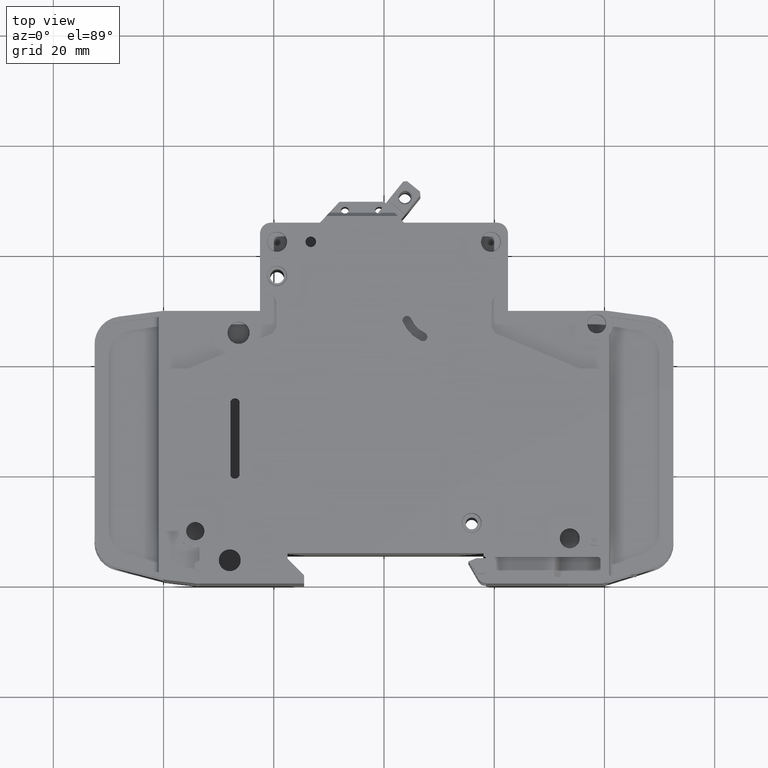
[diagram: clean part render]
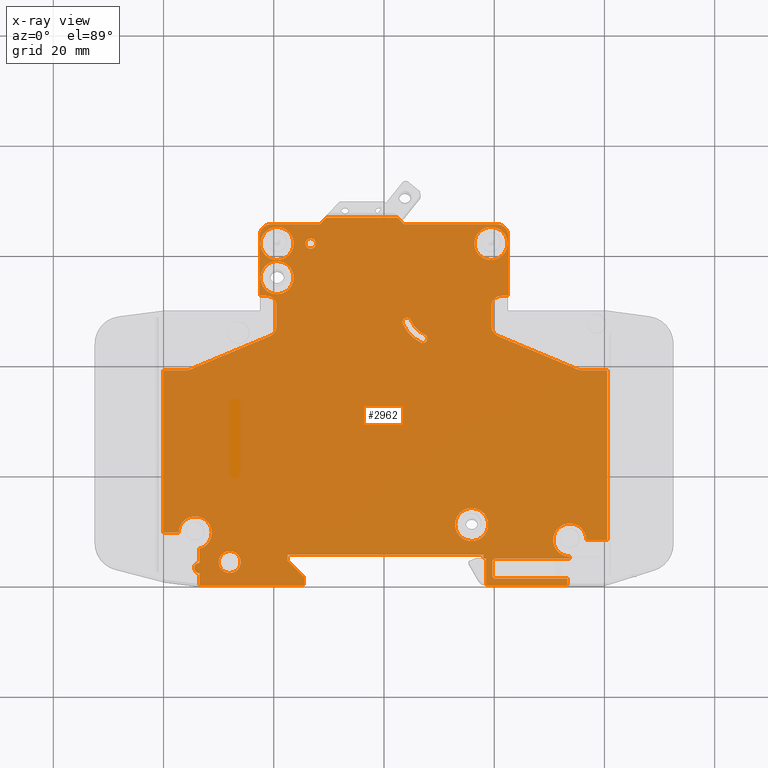
[diagram: x-ray — body ghosted, one internal face saturated and labeled with its STEP entity id]
A machine part, top view, then the same camera in x-ray: the body is ghosted and one INTERNAL B-rep face — a face not visible from any outside direction — is saturated and labeled: STEP entity #2962.
In plain terms, the highlighted planar face has unit normal (-0, 0, 1).
Its self-contained STEP definition (entity closure, byte-faithful):
#2 = DIRECTION ( 'NONE',  ( 0.0000000000000000000, -0.0000000000000000000, -1.000000000000000000 ) ) ;
#169 = CARTESIAN_POINT ( 'NONE',  ( 60.49999999999850100, 65.50000000000328300, -8.750000000000000000 ) ) ;
#223 = ORIENTED_EDGE ( 'NONE', *, *, #38591, .F. ) ;
#383 = DIRECTION ( 'NONE',  ( 1.000000000000000000, 0.0000000000000000000, 0.0000000000000000000 ) ) ;
#443 = DIRECTION ( 'NONE',  ( 1.000000000000000000, 0.0000000000000000000, 0.0000000000000000000 ) ) ;
#476 = EDGE_CURVE ( 'NONE', #23713, #4348, #3103, .T. ) ;
#477 = VERTEX_POINT ( 'NONE', #25600 ) ;
#535 = DIRECTION ( 'NONE',  ( 1.000000000000000000, 0.0000000000000000000, 0.0000000000000000000 ) ) ;
#823 = LINE ( 'NONE', #28324, #29866 ) ;
#857 = VECTOR ( 'NONE', #13083, 1000.000000000000000 ) ;
#899 = DIRECTION ( 'NONE',  ( 1.000000000000000000, -6.401373953604597600E-015, 0.0000000000000000000 ) ) ;
#910 = CARTESIAN_POINT ( 'NONE',  ( 73.70000000000001700, 4.799999999944547300, -8.750000000000000000 ) ) ;
#1070 = LINE ( 'NONE', #9812, #30121 ) ;
#1168 = VECTOR ( 'NONE', #7550, 1000.000000000000000 ) ;
#1631 = CARTESIAN_POINT ( 'NONE',  ( 6.500000000000005300, 0.0000000000000000000, -8.750000000000000000 ) ) ;
#1785 = EDGE_CURVE ( 'NONE', #22176, #15479, #22526, .T. ) ;
#1881 = CARTESIAN_POINT ( 'NONE',  ( 26.70000000006790900, 61.99999999992734700, -8.750000000000000000 ) ) ;
#1955 = EDGE_CURVE ( 'NONE', #37676, #18894, #48111, .T. ) ;
#2018 = EDGE_CURVE ( 'NONE', #10251, #41156, #13037, .T. ) ;
#2020 = VERTEX_POINT ( 'NONE', #37768 ) ;
#2094 = CARTESIAN_POINT ( 'NONE',  ( 28.14999999999816500, 65.50000000000329700, -8.750000000000000000 ) ) ;
#2095 = CIRCLE ( 'NONE', #10343, 3.000000000000002700 ) ;
#2102 = DIRECTION ( 'NONE',  ( 1.000000000000000000, 0.0000000000000000000, 0.0000000000000000000 ) ) ;
#2107 = EDGE_CURVE ( 'NONE', #3338, #30976, #9476, .T. ) ;
#2256 = EDGE_CURVE ( 'NONE', #5230, #4978, #43390, .T. ) ;
#2265 = VECTOR ( 'NONE', #30764, 1000.000000000000100 ) ;
#2421 = DIRECTION ( 'NONE',  ( 1.000000000000000000, 0.0000000000000000000, 0.0000000000000000000 ) ) ;
#2495 = CARTESIAN_POINT ( 'NONE',  ( 58.49999999999850800, 5.299999999972984100, -8.750000000000000000 ) ) ;
#2592 = CARTESIAN_POINT ( 'NONE',  ( 18.69999999999999600, 52.49999999999998600, -8.750000000000000000 ) ) ;
#2633 = CARTESIAN_POINT ( 'NONE',  ( -0.0000000000000000000, 39.00000000000000000, -8.750000000000000000 ) ) ;
#2676 = ORIENTED_EDGE ( 'NONE', *, *, #24277, .F. ) ;
#2939 = DIRECTION ( 'NONE',  ( 3.469446951472634300E-014, -1.000000000000000000, 0.0000000000000000000 ) ) ;
#2962 = ADVANCED_FACE ( 'NONE', ( #43931, #23692, #13601, #17163, #33821, #45090, #3587, #42731 ), #20939, .F. ) ;
#3070 = VECTOR ( 'NONE', #9210, 1000.000000000000000 ) ;
#3073 = DIRECTION ( 'NONE',  ( -1.000000000000000000, 1.604368532695653600E-015, 0.0000000000000000000 ) ) ;
#3103 = LINE ( 'NONE', #14139, #42235 ) ;
#3231 = AXIS2_PLACEMENT_3D ( 'NONE', #41945, #19139, #45765 ) ;
#3240 = CARTESIAN_POINT ( 'NONE',  ( 73.69999999999998900, 5.199999999999993100, -8.750000000000000000 ) ) ;
#3250 = EDGE_CURVE ( 'NONE', #33798, #23713, #30811, .T. ) ;
#3255 = LINE ( 'NONE', #25749, #34661 ) ;
#3286 = DIRECTION ( 'NONE',  ( -0.0000000000000000000, 0.0000000000000000000, 1.000000000000000000 ) ) ;
#3338 = VERTEX_POINT ( 'NONE', #13993 ) ;
#3463 = LINE ( 'NONE', #27538, #42601 ) ;
#3470 = VERTEX_POINT ( 'NONE', #49003 ) ;
#3472 = EDGE_CURVE ( 'NONE', #18027, #15479, #22432, .T. ) ;
#3477 = AXIS2_PLACEMENT_3D ( 'NONE', #18796, #45444, #22665 ) ;
#3485 = EDGE_CURVE ( 'NONE', #19792, #3338, #31386, .T. ) ;
#3587 = FACE_BOUND ( 'NONE', #25718, .T. ) ;
#3742 = DIRECTION ( 'NONE',  ( 0.0000000000000000000, -1.000000000000000000, 0.0000000000000000000 ) ) ;
#3763 = CARTESIAN_POINT ( 'NONE',  ( 62.49999999999850100, 0.0000000000000000000, -8.750000000000000000 ) ) ;
#3804 = DIRECTION ( 'NONE',  ( 1.000000000000000000, 0.0000000000000000000, 0.0000000000000000000 ) ) ;
#3995 = VERTEX_POINT ( 'NONE', #36402 ) ;
#4054 = CARTESIAN_POINT ( 'NONE',  ( 25.50000000000000400, 1.500000000000023300, -8.750000000000000000 ) ) ;
#4092 = CARTESIAN_POINT ( 'NONE',  ( 75.90184511522200200, 41.00000000000000000, -8.750000000000000000 ) ) ;
#4348 = VERTEX_POINT ( 'NONE', #910 ) ;
#4367 = VERTEX_POINT ( 'NONE', #39032 ) ;
#4372 = CARTESIAN_POINT ( 'NONE',  ( -0.0000000000000000000, 9.500000000000147400, -8.750000000000000000 ) ) ;
#4474 = ORIENTED_EDGE ( 'NONE', *, *, #24233, .T. ) ;
#4506 = EDGE_CURVE ( 'NONE', #4367, #9319, #5213, .T. ) ;
#4646 = CARTESIAN_POINT ( 'NONE',  ( 1.637829011552916400E-013, 65.50000000000342500, -8.750000000000000000 ) ) ;
#4773 = CARTESIAN_POINT ( 'NONE',  ( 4.098154884801252800, 41.00000000000000000, -8.750000000000000000 ) ) ;
#4822 = CARTESIAN_POINT ( 'NONE',  ( 80.50000000001294600, 8.200000000000043700, -8.749999999996021000 ) ) ;
#4874 = EDGE_CURVE ( 'NONE', #16129, #32636, #25302, .T. ) ;
#4952 = ORIENTED_EDGE ( 'NONE', *, *, #10032, .F. ) ;
#4967 = ORIENTED_EDGE ( 'NONE', *, *, #11323, .T. ) ;
#4978 = VERTEX_POINT ( 'NONE', #12909 ) ;
#5010 = ORIENTED_EDGE ( 'NONE', *, *, #20524, .T. ) ;
#5036 = VECTOR ( 'NONE', #43300, 999.9999999999998900 ) ;
#5049 = VECTOR ( 'NONE', #3742, 1000.000000000000000 ) ;
#5158 = VERTEX_POINT ( 'NONE', #20388 ) ;
#5213 = CIRCLE ( 'NONE', #13341, 0.9499999999563018000 ) ;
#5230 = VERTEX_POINT ( 'NONE', #32213 ) ;
#5259 = ORIENTED_EDGE ( 'NONE', *, *, #42773, .F. ) ;
#5705 = DIRECTION ( 'NONE',  ( 1.000000000000000000, 0.0000000000000000000, 0.0000000000000000000 ) ) ;
#5730 = EDGE_CURVE ( 'NONE', #28016, #6562, #46611, .T. ) ;
#6040 = DIRECTION ( 'NONE',  ( -0.0000000000000000000, 1.000000000000000000, -0.0000000000000000000 ) ) ;
#6127 = DIRECTION ( 'NONE',  ( 0.0000000000000000000, -0.0000000000000000000, -1.000000000000000000 ) ) ;
#6295 = DIRECTION ( 'NONE',  ( 1.000000000000000000, 0.0000000000000000000, 0.0000000000000000000 ) ) ;
#6366 = VERTEX_POINT ( 'NONE', #31155 ) ;
#6368 = VECTOR ( 'NONE', #28137, 1000.000000000000000 ) ;
#6373 = CIRCLE ( 'NONE', #24880, 4.999999999999997300 ) ;
#6512 = EDGE_CURVE ( 'NONE', #6366, #46537, #33465, .T. ) ;
#6562 = VERTEX_POINT ( 'NONE', #35646 ) ;
#6571 = EDGE_CURVE ( 'NONE', #22176, #18894, #20942, .T. ) ;
#6658 = LINE ( 'NONE', #44755, #35696 ) ;
#6683 = VECTOR ( 'NONE', #38916, 1000.000000000000000 ) ;
#6943 = DIRECTION ( 'NONE',  ( -0.6774757547513893300, 0.7355451051594560400, 0.0000000000000000000 ) ) ;
#6971 = CIRCLE ( 'NONE', #3231, 2.000000000000000000 ) ;
#7014 = ORIENTED_EDGE ( 'NONE', *, *, #3250, .T. ) ;
#7032 = VERTEX_POINT ( 'NONE', #23987 ) ;
#7156 = EDGE_CURVE ( 'NONE', #24041, #32636, #18714, .T. ) ;
#7225 = CARTESIAN_POINT ( 'NONE',  ( 5.750000000000020400, 9.500000000000001800, -8.750000000000000000 ) ) ;
#7266 = CARTESIAN_POINT ( 'NONE',  ( 20.50000000000082100, 47.03077264198781600, -8.750000000000000000 ) ) ;
#7302 = EDGE_CURVE ( 'NONE', #24528, #41156, #6373, .T. ) ;
#7325 = VERTEX_POINT ( 'NONE', #14657 ) ;
#7453 = VECTOR ( 'NONE', #19244, 1000.000000000000000 ) ;
#7550 = DIRECTION ( 'NONE',  ( 0.0000000000000000000, 1.000000000000000000, -0.0000000000000000000 ) ) ;
#7607 = CARTESIAN_POINT ( 'NONE',  ( 59.39999999986778800, 61.99999999992734700, -8.750000000000000000 ) ) ;
#7717 = CARTESIAN_POINT ( 'NONE',  ( 47.84881408190494800, 44.74341483518859500, -8.750000000000000000 ) ) ;
#7756 = CARTESIAN_POINT ( 'NONE',  ( 18.50000000000082800, 47.03077264198787300, -8.750000000000000000 ) ) ;
#7788 = EDGE_CURVE ( 'NONE', #4348, #28016, #31798, .T. ) ;
#7849 = CARTESIAN_POINT ( 'NONE',  ( 59.70000000000000300, 0.0000000000000000000, -8.750000000000000000 ) ) ;
#7889 = DIRECTION ( 'NONE',  ( 1.000000000000000000, -6.938893903907270200E-015, 0.0000000000000000000 ) ) ;
#7971 = DIRECTION ( 'NONE',  ( -0.0000000000000000000, 0.0000000000000000000, 1.000000000000000000 ) ) ;
#7978 = CARTESIAN_POINT ( 'NONE',  ( 73.29999999999999700, 3.469446951953614200E-014, -8.750000000000000000 ) ) ;
#8021 = VERTEX_POINT ( 'NONE', #26462 ) ;
#8061 = CARTESIAN_POINT ( 'NONE',  ( 25.15867925154756400, 60.08042806341725800, -8.750000000000000000 ) ) ;
#8071 = EDGE_CURVE ( 'NONE', #18027, #39417, #48982, .T. ) ;
#8143 = DIRECTION ( 'NONE',  ( -0.0000000000000000000, 0.0000000000000000000, 1.000000000000000000 ) ) ;
#8219 = ORIENTED_EDGE ( 'NONE', *, *, #26028, .T. ) ;
#8343 = VERTEX_POINT ( 'NONE', #36047 ) ;
#8383 = CARTESIAN_POINT ( 'NONE',  ( 22.50000000000024200, 5.500000000000264700, -8.750000000000000000 ) ) ;
#8524 = AXIS2_PLACEMENT_3D ( 'NONE', #22633, #2, #26483 ) ;
#8568 = DIRECTION ( 'NONE',  ( 1.000000000000000000, 3.469446951953651700E-015, 0.0000000000000000000 ) ) ;
#8608 = EDGE_CURVE ( 'NONE', #41450, #14872, #15065, .T. ) ;
#8636 = ORIENTED_EDGE ( 'NONE', *, *, #24525, .T. ) ;
#8702 = CARTESIAN_POINT ( 'NONE',  ( 6.500000000000005300, 4.050000000000018500, -8.750000000000000000 ) ) ;
#8733 = VECTOR ( 'NONE', #29116, 1000.000000000000000 ) ;
#8851 = AXIS2_PLACEMENT_3D ( 'NONE', #19555, #46184, #23407 ) ;
#8934 = CIRCLE ( 'NONE', #3477, 0.1999999999999875200 ) ;
#8958 = CIRCLE ( 'NONE', #40060, 2.999999999999999100 ) ;
#8961 = CARTESIAN_POINT ( 'NONE',  ( 20.60000000793647200, 61.99999999992735400, -8.750000000000000000 ) ) ;
#9020 = EDGE_CURVE ( 'NONE', #48818, #38464, #38283, .T. ) ;
#9210 = DIRECTION ( 'NONE',  ( 0.0000000000000000000, -1.000000000000000000, 0.0000000000000000000 ) ) ;
#9319 = VERTEX_POINT ( 'NONE', #15406 ) ;
#9385 = VECTOR ( 'NONE', #37943, 1000.000000000000000 ) ;
#9404 = ORIENTED_EDGE ( 'NONE', *, *, #5730, .T. ) ;
#9476 = CIRCLE ( 'NONE', #33932, 1.999999999999994900 ) ;
#9611 = ORIENTED_EDGE ( 'NONE', *, *, #31237, .F. ) ;
#9795 = AXIS2_PLACEMENT_3D ( 'NONE', #43731, #47552, #24774 ) ;
#9807 = CARTESIAN_POINT ( 'NONE',  ( 47.04881408190487900, 44.74341483518859500, -8.750000000000000000 ) ) ;
#9812 = CARTESIAN_POINT ( 'NONE',  ( 8.405070328336147700E-016, -7.077671781985372900E-013, -8.749999999996021000 ) ) ;
#9886 = ORIENTED_EDGE ( 'NONE', *, *, #43252, .T. ) ;
#9893 = EDGE_CURVE ( 'NONE', #30976, #23307, #38192, .T. ) ;
#9907 = CARTESIAN_POINT ( 'NONE',  ( 0.0000000000000000000, 4.799999999944547300, -8.750000000000000000 ) ) ;
#10032 = EDGE_CURVE ( 'NONE', #4978, #22736, #823, .T. ) ;
#10108 = CIRCLE ( 'NONE', #25473, 3.000000000000002700 ) ;
#10131 = CARTESIAN_POINT ( 'NONE',  ( 75.12934078732412500, 39.15521354531781400, -8.750000000000000000 ) ) ;
#10251 = VERTEX_POINT ( 'NONE', #38607 ) ;
#10306 = DIRECTION ( 'NONE',  ( -0.0000000000000000000, 0.0000000000000000000, 1.000000000000000000 ) ) ;
#10343 = AXIS2_PLACEMENT_3D ( 'NONE', #33042, #10306, #36847 ) ;
#10594 = DIRECTION ( 'NONE',  ( 0.0000000000000000000, -1.000000000000000000, 0.0000000000000000000 ) ) ;
#10665 = ORIENTED_EDGE ( 'NONE', *, *, #2256, .F. ) ;
#10993 = DIRECTION ( 'NONE',  ( 1.000000000000000000, 0.0000000000000000000, 0.0000000000000000000 ) ) ;
#11022 = ORIENTED_EDGE ( 'NONE', *, *, #40460, .T. ) ;
#11128 = CARTESIAN_POINT ( 'NONE',  ( 52.89999999999999900, 11.00000000000000400, -8.750000000000000000 ) ) ;
#11150 = AXIS2_PLACEMENT_3D ( 'NONE', #16503, #43113, #20324 ) ;
#11189 = EDGE_CURVE ( 'NONE', #35503, #41852, #16057, .T. ) ;
#11323 = EDGE_CURVE ( 'NONE', #46537, #6366, #8958, .T. ) ;
#11328 = CARTESIAN_POINT ( 'NONE',  ( 60.20000000000000300, 4.799999999944546400, -8.750000000000000000 ) ) ;
#11337 = ORIENTED_EDGE ( 'NONE', *, *, #476, .T. ) ;
#11360 = ORIENTED_EDGE ( 'NONE', *, *, #12999, .F. ) ;
#11382 = CARTESIAN_POINT ( 'NONE',  ( 3.035766082959468500E-013, 52.50000000000034800, -8.750000000000000000 ) ) ;
#11403 = DIRECTION ( 'NONE',  ( 1.000000000000000000, 0.0000000000000000000, 0.0000000000000000000 ) ) ;
#11548 = DIRECTION ( 'NONE',  ( 1.000000000000000000, 0.0000000000000000000, 0.0000000000000000000 ) ) ;
#11594 = VECTOR ( 'NONE', #40273, 1000.000000000000000 ) ;
#11635 = VERTEX_POINT ( 'NONE', #24523 ) ;
#11927 = EDGE_CURVE ( 'NONE', #16129, #8021, #21902, .T. ) ;
#12026 = DIRECTION ( 'NONE',  ( -0.0000000000000000000, 0.0000000000000000000, 1.000000000000000000 ) ) ;
#12072 = CARTESIAN_POINT ( 'NONE',  ( -0.0000000000000000000, 39.00000000000000000, -8.750000000000000000 ) ) ;
#12073 = VERTEX_POINT ( 'NONE', #19606 ) ;
#12261 = CARTESIAN_POINT ( 'NONE',  ( 43.45146909758702900, 65.66126212262710700, -8.750000000000000000 ) ) ;
#12454 = VECTOR ( 'NONE', #39687, 1000.000000000000100 ) ;
#12596 = DIRECTION ( 'NONE',  ( 0.0000000000000000000, -0.0000000000000000000, -1.000000000000000000 ) ) ;
#12728 = CARTESIAN_POINT ( 'NONE',  ( 60.20000000000000300, 1.699999999984503000, -8.750000000000000000 ) ) ;
#12750 = DIRECTION ( 'NONE',  ( 1.000000000000000000, 0.0000000000000000000, 0.0000000000000000000 ) ) ;
#12770 = EDGE_CURVE ( 'NONE', #38658, #477, #20622, .T. ) ;
#12909 = CARTESIAN_POINT ( 'NONE',  ( 6.500000000000005300, 2.350990073452610000E-013, -8.750000000000000000 ) ) ;
#12999 = EDGE_CURVE ( 'NONE', #23307, #30136, #22378, .T. ) ;
#13002 = DIRECTION ( 'NONE',  ( 0.0000000000000000000, -1.000000000000000000, 0.0000000000000000000 ) ) ;
#13037 = CIRCLE ( 'NONE', #8524, 0.8000000000000715400 ) ;
#13083 = DIRECTION ( 'NONE',  ( 1.000000000000000000, -2.618450529772908900E-014, 0.0000000000000000000 ) ) ;
#13164 = ORIENTED_EDGE ( 'NONE', *, *, #37849, .F. ) ;
#13341 = AXIS2_PLACEMENT_3D ( 'NONE', #1881, #28410, #5705 ) ;
#13389 = CARTESIAN_POINT ( 'NONE',  ( 5.750000000000020400, 9.500000000000001800, -8.750000000000000000 ) ) ;
#13391 = VERTEX_POINT ( 'NONE', #46370 ) ;
#13565 = ORIENTED_EDGE ( 'NONE', *, *, #6512, .T. ) ;
#13587 = DIRECTION ( 'NONE',  ( 1.000000000000000000, 0.0000000000000000000, 0.0000000000000000000 ) ) ;
#13601 = FACE_BOUND ( 'NONE', #19662, .T. ) ;
#13616 = ORIENTED_EDGE ( 'NONE', *, *, #4874, .T. ) ;
#13666 = DIRECTION ( 'NONE',  ( 0.0000000000000000000, -0.0000000000000000000, -1.000000000000000000 ) ) ;
#13962 = EDGE_CURVE ( 'NONE', #14872, #41852, #18288, .T. ) ;
#13993 = CARTESIAN_POINT ( 'NONE',  ( 62.49999999999850100, 63.50000000000330400, -8.750000000000000000 ) ) ;
#14058 = AXIS2_PLACEMENT_3D ( 'NONE', #18692, #45334, #22538 ) ;
#14139 = CARTESIAN_POINT ( 'NONE',  ( 73.70000000000018800, 2.556982403235337700E-012, -8.750000000000000000 ) ) ;
#14326 = ORIENTED_EDGE ( 'NONE', *, *, #26761, .F. ) ;
#14402 = CIRCLE ( 'NONE', #47468, 1.999999999999998200 ) ;
#14428 = CARTESIAN_POINT ( 'NONE',  ( 6.500000000000005300, 0.0000000000000000000, -8.750000000000000000 ) ) ;
#14526 = CARTESIAN_POINT ( 'NONE',  ( 19.50000000000000000, 65.50000000000331100, -8.750000000000000000 ) ) ;
#14580 = DIRECTION ( 'NONE',  ( 0.0000000000000000000, -1.000000000000000000, 0.0000000000000000000 ) ) ;
#14656 = EDGE_CURVE ( 'NONE', #22736, #22103, #48021, .T. ) ;
#14657 = CARTESIAN_POINT ( 'NONE',  ( 58.89999999999999900, 11.00000000000000400, -8.750000000000000000 ) ) ;
#14856 = VERTEX_POINT ( 'NONE', #23018 ) ;
#14872 = VERTEX_POINT ( 'NONE', #7978 ) ;
#15045 = ORIENTED_EDGE ( 'NONE', *, *, #34268, .F. ) ;
#15046 = CARTESIAN_POINT ( 'NONE',  ( 59.50000000002256000, 1.125207426520457600E-013, -8.750000000000000000 ) ) ;
#15056 = LINE ( 'NONE', #20528, #5036 ) ;
#15065 = LINE ( 'NONE', #34055, #5049 ) ;
#15324 = CIRCLE ( 'NONE', #29326, 1.999999999999978500 ) ;
#15399 = DIRECTION ( 'NONE',  ( -1.000000000000000000, -1.324216393875425600E-016, 0.0000000000000000000 ) ) ;
#15406 = CARTESIAN_POINT ( 'NONE',  ( 25.75000000011160900, 61.99999999992734700, -8.750000000000000000 ) ) ;
#15479 = VERTEX_POINT ( 'NONE', #32354 ) ;
#15527 = LINE ( 'NONE', #19000, #44649 ) ;
#15592 = ORIENTED_EDGE ( 'NONE', *, *, #17597, .F. ) ;
#15748 = CARTESIAN_POINT ( 'NONE',  ( 29.50526315788999600, 66.70000000000675300, -8.750000000000000000 ) ) ;
#15780 = CIRCLE ( 'NONE', #25979, 2.999999999999999100 ) ;
#15963 = VECTOR ( 'NONE', #20048, 1000.000000000000000 ) ;
#16032 = EDGE_CURVE ( 'NONE', #20267, #35503, #25962, .T. ) ;
#16057 = LINE ( 'NONE', #29881, #44020 ) ;
#16129 = VERTEX_POINT ( 'NONE', #7266 ) ;
#16195 = DIRECTION ( 'NONE',  ( -0.7071067811865965300, 0.7071067811864985000, 0.0000000000000000000 ) ) ;
#16503 = CARTESIAN_POINT ( 'NONE',  ( 60.20000000000000300, 4.299999999944547300, -8.750000000000000000 ) ) ;
#16506 = EDGE_CURVE ( 'NONE', #9319, #4367, #23509, .T. ) ;
#16508 = DIRECTION ( 'NONE',  ( 1.000000000000000000, 0.0000000000000000000, 0.0000000000000000000 ) ) ;
#16684 = ORIENTED_EDGE ( 'NONE', *, *, #16032, .F. ) ;
#16687 = ORIENTED_EDGE ( 'NONE', *, *, #2018, .F. ) ;
#16704 = ORIENTED_EDGE ( 'NONE', *, *, #23227, .F. ) ;
#16793 = CARTESIAN_POINT ( 'NONE',  ( 17.50000000000000000, 0.0000000000000000000, -8.750000000000000000 ) ) ;
#17155 = VECTOR ( 'NONE', #28330, 1000.000000000000000 ) ;
#17163 = FACE_BOUND ( 'NONE', #23904, .T. ) ;
#17178 = DIRECTION ( 'NONE',  ( 1.000000000000000000, 0.0000000000000000000, 0.0000000000000000000 ) ) ;
#17315 = EDGE_LOOP ( 'NONE', ( #5010, #21410 ) ) ;
#17597 = EDGE_CURVE ( 'NONE', #47325, #477, #43038, .T. ) ;
#17672 = VERTEX_POINT ( 'NONE', #38371 ) ;
#17710 = ORIENTED_EDGE ( 'NONE', *, *, #6571, .T. ) ;
#17748 = ORIENTED_EDGE ( 'NONE', *, *, #1955, .F. ) ;
#17813 = CIRCLE ( 'NONE', #31014, 2.999999999999995600 ) ;
#18027 = VERTEX_POINT ( 'NONE', #33351 ) ;
#18116 = DIRECTION ( 'NONE',  ( -0.7071067811864946200, 0.7071067811866005300, 0.0000000000000000000 ) ) ;
#18164 = ORIENTED_EDGE ( 'NONE', *, *, #21993, .F. ) ;
#18235 = CARTESIAN_POINT ( 'NONE',  ( 49.49999999999929700, 50.00000000000200400, -8.750000000000000000 ) ) ;
#18288 = LINE ( 'NONE', #20789, #17155 ) ;
#18327 = VERTEX_POINT ( 'NONE', #31322 ) ;
#18641 = ORIENTED_EDGE ( 'NONE', *, *, #26079, .F. ) ;
#18692 = CARTESIAN_POINT ( 'NONE',  ( 20.60000000793647200, 55.79999999992195800, -8.750000000000000000 ) ) ;
#18714 = CIRCLE ( 'NONE', #41118, 1.800000000000398600 ) ;
#18796 = CARTESIAN_POINT ( 'NONE',  ( 6.699999999999983300, 6.866086561786839400, -8.750000000000000000 ) ) ;
#18894 = VERTEX_POINT ( 'NONE', #32279 ) ;
#19000 = CARTESIAN_POINT ( 'NONE',  ( -1.589059672629979200E-016, 1.199999999984495500, -8.750000000000000000 ) ) ;
#19047 = CARTESIAN_POINT ( 'NONE',  ( 61.50000000002243900, 47.03077264198788000, -8.750000000000000000 ) ) ;
#19056 = VERTEX_POINT ( 'NONE', #10131 ) ;
#19061 = ORIENTED_EDGE ( 'NONE', *, *, #28077, .T. ) ;
#19139 = DIRECTION ( 'NONE',  ( -0.0000000000000000000, 0.0000000000000000000, 1.000000000000000000 ) ) ;
#19244 = DIRECTION ( 'NONE',  ( 1.591098326534340900E-011, -1.000000000000000000, 0.0000000000000000000 ) ) ;
#19253 = EDGE_CURVE ( 'NONE', #41450, #40956, #15527, .T. ) ;
#19288 = CARTESIAN_POINT ( 'NONE',  ( 20.50000000000079600, 50.69999999999918600, -8.750000000000000000 ) ) ;
#19555 = CARTESIAN_POINT ( 'NONE',  ( 73.70000000000000300, 8.199999999999999300, -8.750000000000000000 ) ) ;
#19606 = CARTESIAN_POINT ( 'NONE',  ( 43.79999999999825600, 65.50037037828451500, -8.750000000000000000 ) ) ;
#19647 = EDGE_CURVE ( 'NONE', #38464, #48818, #17813, .T. ) ;
#19655 = ORIENTED_EDGE ( 'NONE', *, *, #39062, .F. ) ;
#19662 = EDGE_LOOP ( 'NONE', ( #46900, #46829 ) ) ;
#19749 = CARTESIAN_POINT ( 'NONE',  ( 43.79999999969146500, -2.051483660483898700E-010, -8.750000000000000000 ) ) ;
#19792 = VERTEX_POINT ( 'NONE', #42590 ) ;
#20048 = DIRECTION ( 'NONE',  ( -1.000000000000000000, -2.967290156265997900E-014, 0.0000000000000000000 ) ) ;
#20140 = CARTESIAN_POINT ( 'NONE',  ( 22.50000000000022000, -7.806255641895477900E-014, -8.750000000000000000 ) ) ;
#20242 = CARTESIAN_POINT ( 'NONE',  ( 56.39999999986779500, 61.99999999992734700, -8.750000000000000000 ) ) ;
#20267 = VERTEX_POINT ( 'NONE', #27108 ) ;
#20292 = CARTESIAN_POINT ( 'NONE',  ( -10.82500000000569100, 10.82500000000719200, -8.750000000000000000 ) ) ;
#20324 = DIRECTION ( 'NONE',  ( 1.000000000000000000, 0.0000000000000000000, 0.0000000000000000000 ) ) ;
#20388 = CARTESIAN_POINT ( 'NONE',  ( 61.30000000002327500, 52.49999999999999300, -8.750000000000000000 ) ) ;
#20410 = VECTOR ( 'NONE', #899, 1000.000000000000000 ) ;
#20481 = CIRCLE ( 'NONE', #22106, 2.000000000000000000 ) ;
#20524 = EDGE_CURVE ( 'NONE', #36945, #2020, #20481, .T. ) ;
#20528 = CARTESIAN_POINT ( 'NONE',  ( -13.22342051912373200, 31.57831765761954300, -8.750000000000000000 ) ) ;
#20622 = LINE ( 'NONE', #15046, #9385 ) ;
#20744 = CIRCLE ( 'NONE', #43404, 2.999999999999999100 ) ;
#20789 = CARTESIAN_POINT ( 'NONE',  ( 9.066674948072921700E-025, 8.151842603365492200E-012, -8.750000000000000000 ) ) ;
#20827 = VERTEX_POINT ( 'NONE', #35161 ) ;
#20939 = PLANE ( 'NONE',  #9795 ) ;
#20942 = LINE ( 'NONE', #35824, #857 ) ;
#20955 = DIRECTION ( 'NONE',  ( 1.000000000000000000, 0.0000000000000000000, 0.0000000000000000000 ) ) ;
#21069 = VECTOR ( 'NONE', #30554, 1000.000000000000000 ) ;
#21085 = VERTEX_POINT ( 'NONE', #36794 ) ;
#21184 = AXIS2_PLACEMENT_3D ( 'NONE', #9807, #36358, #13587 ) ;
#21410 = ORIENTED_EDGE ( 'NONE', *, *, #45119, .T. ) ;
#21707 = DIRECTION ( 'NONE',  ( 0.0000000000000000000, 1.000000000000000000, -0.0000000000000000000 ) ) ;
#21902 = CIRCLE ( 'NONE', #27022, 2.000000000000008900 ) ;
#21961 = ORIENTED_EDGE ( 'NONE', *, *, #42451, .F. ) ;
#21974 = ORIENTED_EDGE ( 'NONE', *, *, #42909, .T. ) ;
#21992 = ORIENTED_EDGE ( 'NONE', *, *, #28172, .T. ) ;
#21993 = EDGE_CURVE ( 'NONE', #40966, #31497, #29376, .T. ) ;
#22052 = VERTEX_POINT ( 'NONE', #11128 ) ;
#22103 = VERTEX_POINT ( 'NONE', #4054 ) ;
#22106 = AXIS2_PLACEMENT_3D ( 'NONE', #47855, #25091, #2421 ) ;
#22112 = DIRECTION ( 'NONE',  ( 1.000000000000000000, 0.0000000000000000000, 0.0000000000000000000 ) ) ;
#22176 = VERTEX_POINT ( 'NONE', #15748 ) ;
#22221 = EDGE_CURVE ( 'NONE', #31497, #10251, #47771, .T. ) ;
#22227 = DIRECTION ( 'NONE',  ( 0.0000000000000000000, -0.0000000000000000000, -1.000000000000000000 ) ) ;
#22280 = ORIENTED_EDGE ( 'NONE', *, *, #19253, .F. ) ;
#22293 = EDGE_CURVE ( 'NONE', #25139, #8021, #15056, .T. ) ;
#22378 = LINE ( 'NONE', #20292, #40251 ) ;
#22432 = CIRCLE ( 'NONE', #25697, 0.4999999999985189600 ) ;
#22513 = CARTESIAN_POINT ( 'NONE',  ( 26.70000000006790900, 61.99999999992734700, -8.750000000000000000 ) ) ;
#22526 = LINE ( 'NONE', #24383, #12454 ) ;
#22538 = DIRECTION ( 'NONE',  ( 1.000000000000000000, 0.0000000000000000000, 0.0000000000000000000 ) ) ;
#22572 = DIRECTION ( 'NONE',  ( -0.0000000000000000000, 0.0000000000000000000, 1.000000000000000000 ) ) ;
#22583 = CARTESIAN_POINT ( 'NONE',  ( 59.50000000002246700, 50.69999999999919300, -8.750000000000000000 ) ) ;
#22608 = ORIENTED_EDGE ( 'NONE', *, *, #39922, .T. ) ;
#22633 = CARTESIAN_POINT ( 'NONE',  ( 44.16107184997580500, 47.73375945476246300, -8.750000000000000000 ) ) ;
#22665 = DIRECTION ( 'NONE',  ( 1.000000000000000000, 0.0000000000000000000, 0.0000000000000000000 ) ) ;
#22736 = VERTEX_POINT ( 'NONE', #38811 ) ;
#22774 = DIRECTION ( 'NONE',  ( 0.0000000000000000000, 1.000000000000000000, -0.0000000000000000000 ) ) ;
#22899 = DIRECTION ( 'NONE',  ( 1.000000000000000000, -3.469446951953611000E-015, 0.0000000000000000000 ) ) ;
#23012 = DIRECTION ( 'NONE',  ( -0.0000000000000000000, 0.0000000000000000000, 1.000000000000000000 ) ) ;
#23018 = CARTESIAN_POINT ( 'NONE',  ( 2.750000000000020900, 9.500000000000008900, -8.750000000000000000 ) ) ;
#23066 = DIRECTION ( 'NONE',  ( -0.0000000000000000000, 0.0000000000000000000, 1.000000000000000000 ) ) ;
#23183 = CARTESIAN_POINT ( 'NONE',  ( 76.70000000000000300, 8.199999999999931800, -8.750000000000000000 ) ) ;
#23227 = EDGE_CURVE ( 'NONE', #34412, #7032, #32805, .T. ) ;
#23263 = CARTESIAN_POINT ( 'NONE',  ( 43.84999999999801900, 65.50000000000332500, -8.750000000000000000 ) ) ;
#23307 = VERTEX_POINT ( 'NONE', #23263 ) ;
#23322 = CARTESIAN_POINT ( 'NONE',  ( 23.60000000793646900, 55.79999999992195800, -8.750000000000000000 ) ) ;
#23374 = EDGE_CURVE ( 'NONE', #30136, #12073, #26843, .T. ) ;
#23407 = DIRECTION ( 'NONE',  ( 1.000000000000000000, 0.0000000000000000000, 0.0000000000000000000 ) ) ;
#23458 = DIRECTION ( 'NONE',  ( -1.000000000000000000, 2.500502307714245400E-015, 0.0000000000000000000 ) ) ;
#23509 = CIRCLE ( 'NONE', #39173, 0.9499999999563018000 ) ;
#23539 = LINE ( 'NONE', #8061, #2265 ) ;
#23692 = FACE_BOUND ( 'NONE', #17315, .T. ) ;
#23713 = VERTEX_POINT ( 'NONE', #3240 ) ;
#23788 = ORIENTED_EDGE ( 'NONE', *, *, #44564, .F. ) ;
#23899 = CARTESIAN_POINT ( 'NONE',  ( 58.49999999999850800, 4.799999999974497600, -8.750000000000000000 ) ) ;
#23904 = EDGE_LOOP ( 'NONE', ( #13565, #4967 ) ) ;
#23918 = CARTESIAN_POINT ( 'NONE',  ( -2.433177928137422200E-013, 8.199999999997654500, -8.750000000000000000 ) ) ;
#23987 = CARTESIAN_POINT ( 'NONE',  ( 80.50000000001294600, 39.00000000000000000, -8.749999999996021000 ) ) ;
#24008 = DIRECTION ( 'NONE',  ( 3.469446951953511600E-015, 1.000000000000000000, 0.0000000000000000000 ) ) ;
#24036 = ORIENTED_EDGE ( 'NONE', *, *, #3485, .F. ) ;
#24041 = VERTEX_POINT ( 'NONE', #2592 ) ;
#24146 = ORIENTED_EDGE ( 'NONE', *, *, #8608, .T. ) ;
#24233 = EDGE_CURVE ( 'NONE', #7325, #22052, #10108, .T. ) ;
#24240 = CARTESIAN_POINT ( 'NONE',  ( 44.89747573273773200, 48.04634435755414000, -8.750000000000000000 ) ) ;
#24277 = EDGE_CURVE ( 'NONE', #8343, #14856, #39239, .T. ) ;
#24383 = CARTESIAN_POINT ( 'NONE',  ( -17.27440989133155500, 15.91064068936652200, -8.750000000000000000 ) ) ;
#24409 = AXIS2_PLACEMENT_3D ( 'NONE', #12728, #39330, #16508 ) ;
#24497 = VERTEX_POINT ( 'NONE', #28373 ) ;
#24523 = CARTESIAN_POINT ( 'NONE',  ( 6.500000000000001800, 6.866086561786839400, -8.750000000000000000 ) ) ;
#24525 = EDGE_CURVE ( 'NONE', #18327, #14856, #20744, .T. ) ;
#24526 = EDGE_LOOP ( 'NONE', ( #4474, #35888 ) ) ;
#24528 = VERTEX_POINT ( 'NONE', #32322 ) ;
#24571 = CARTESIAN_POINT ( 'NONE',  ( 43.79999999999802200, 65.45000000000334200, -8.750000000000000000 ) ) ;
#24745 = DIRECTION ( 'NONE',  ( -0.0000000000000000000, 0.0000000000000000000, 1.000000000000000000 ) ) ;
#24774 = DIRECTION ( 'NONE',  ( 1.000000000000000000, 0.0000000000000000000, 0.0000000000000000000 ) ) ;
#24776 = VECTOR ( 'NONE', #46270, 1000.000000000000000 ) ;
#24880 = AXIS2_PLACEMENT_3D ( 'NONE', #18235, #44866, #22112 ) ;
#25091 = DIRECTION ( 'NONE',  ( -0.0000000000000000000, 0.0000000000000000000, 1.000000000000000000 ) ) ;
#25139 = VERTEX_POINT ( 'NONE', #44232 ) ;
#25169 = VERTEX_POINT ( 'NONE', #36895 ) ;
#25252 = VECTOR ( 'NONE', #13002, 1000.000000000000000 ) ;
#25262 = CARTESIAN_POINT ( 'NONE',  ( 60.72749567212451200, 45.18598618730563000, -8.750000000000000000 ) ) ;
#25302 = LINE ( 'NONE', #38855, #34219 ) ;
#25307 = CARTESIAN_POINT ( 'NONE',  ( 17.50000000000000000, 63.50000000000330400, -8.750000000000000000 ) ) ;
#25452 = ORIENTED_EDGE ( 'NONE', *, *, #22293, .T. ) ;
#25473 = AXIS2_PLACEMENT_3D ( 'NONE', #45795, #23012, #383 ) ;
#25506 = VECTOR ( 'NONE', #6943, 1000.000000000000100 ) ;
#25600 = CARTESIAN_POINT ( 'NONE',  ( 59.50000000002247400, 47.03077264198788000, -8.750000000000000000 ) ) ;
#25651 = CIRCLE ( 'NONE', #46868, 2.999999999999999100 ) ;
#25697 = AXIS2_PLACEMENT_3D ( 'NONE', #45365, #22572, #49157 ) ;
#25704 = ORIENTED_EDGE ( 'NONE', *, *, #11927, .F. ) ;
#25718 = EDGE_LOOP ( 'NONE', ( #46132, #18164, #14326, #48121, #16687 ) ) ;
#25728 = AXIS2_PLACEMENT_3D ( 'NONE', #45857, #23066, #443 ) ;
#25749 = CARTESIAN_POINT ( 'NONE',  ( 1.050861388915706600E-013, 65.50000000000334000, -8.750000000000000000 ) ) ;
#25945 = CARTESIAN_POINT ( 'NONE',  ( 19.50000000000000000, 63.50000000000330400, -8.750000000000000000 ) ) ;
#25962 = CIRCLE ( 'NONE', #48667, 0.4999999999984877700 ) ;
#25979 = AXIS2_PLACEMENT_3D ( 'NONE', #7225, #33742, #10993 ) ;
#26028 = EDGE_CURVE ( 'NONE', #3995, #7032, #34872, .T. ) ;
#26079 = EDGE_CURVE ( 'NONE', #39417, #39649, #3463, .T. ) ;
#26390 = DIRECTION ( 'NONE',  ( 1.000000000000000000, 0.0000000000000000000, 0.0000000000000000000 ) ) ;
#26443 = LINE ( 'NONE', #16793, #25252 ) ;
#26462 = CARTESIAN_POINT ( 'NONE',  ( 19.27250432789876600, 45.18598618730563000, -8.750000000000000000 ) ) ;
#26468 = DIRECTION ( 'NONE',  ( 0.0000000000000000000, -0.0000000000000000000, -1.000000000000000000 ) ) ;
#26483 = DIRECTION ( 'NONE',  ( 1.000000000000000000, 0.0000000000000000000, 0.0000000000000000000 ) ) ;
#26761 = EDGE_CURVE ( 'NONE', #24528, #40966, #47654, .T. ) ;
#26843 = LINE ( 'NONE', #19749, #6683 ) ;
#27022 = AXIS2_PLACEMENT_3D ( 'NONE', #7756, #34290, #11548 ) ;
#27108 = CARTESIAN_POINT ( 'NONE',  ( 58.00000000000000700, 5.299999999972984100, -8.750000000000000000 ) ) ;
#27147 = CIRCLE ( 'NONE', #43154, 1.800000000000405500 ) ;
#27193 = EDGE_CURVE ( 'NONE', #20827, #40956, #38684, .T. ) ;
#27268 = ORIENTED_EDGE ( 'NONE', *, *, #33169, .F. ) ;
#27389 = CARTESIAN_POINT ( 'NONE',  ( 3.520755674482790200E-014, 5.500000000000409500, -8.750000000000000000 ) ) ;
#27481 = VERTEX_POINT ( 'NONE', #14526 ) ;
#27538 = CARTESIAN_POINT ( 'NONE',  ( 46.82499999999878100, 46.82500000000527500, -8.750000000000000000 ) ) ;
#27746 = VECTOR ( 'NONE', #10594, 1000.000000000000000 ) ;
#27825 = VECTOR ( 'NONE', #21707, 1000.000000000000000 ) ;
#28016 = VERTEX_POINT ( 'NONE', #11328 ) ;
#28077 = EDGE_CURVE ( 'NONE', #37676, #12073, #32043, .T. ) ;
#28137 = DIRECTION ( 'NONE',  ( -1.000000000000000000, 0.0000000000000000000, -0.0000000000000000000 ) ) ;
#28141 = EDGE_LOOP ( 'NONE', ( #43285, #17710, #17748, #19061, #46936, #11360, #48010, #37617, #24036, #11022, #5259, #30899, #15592, #21974, #27268, #8219, #16704, #21992, #7014, #11337, #46713, #9404, #23788, #32438, #22280, #24146, #46869, #28722, #16684, #13164, #44868, #21961, #35666, #43630, #4952, #10665, #44473, #37381, #15045, #9886, #8636, #2676, #41986, #43428, #32343, #25452, #25704, #13616, #34369, #38562, #9611, #223, #19655, #18641, #28859, #47471 ) ) ;
#28172 = EDGE_CURVE ( 'NONE', #34412, #33798, #46297, .T. ) ;
#28203 = LINE ( 'NONE', #27389, #20410 ) ;
#28324 = CARTESIAN_POINT ( 'NONE',  ( 0.0000000000000000000, 0.0000000000000000000, -8.750000000000000000 ) ) ;
#28330 = DIRECTION ( 'NONE',  ( -1.000000000000000000, 1.112223995140649500E-013, 0.0000000000000000000 ) ) ;
#28373 = CARTESIAN_POINT ( 'NONE',  ( 17.60000000793647200, 55.79999999992195800, -8.750000000000000000 ) ) ;
#28410 = DIRECTION ( 'NONE',  ( -0.0000000000000000000, 0.0000000000000000000, 1.000000000000000000 ) ) ;
#28722 = ORIENTED_EDGE ( 'NONE', *, *, #11189, .F. ) ;
#28843 = CARTESIAN_POINT ( 'NONE',  ( 6.500000000000005300, 3.100000000000019200, -8.750000000000000000 ) ) ;
#28859 = ORIENTED_EDGE ( 'NONE', *, *, #8071, .F. ) ;
#28939 = LINE ( 'NONE', #2633, #8733 ) ;
#28954 = LINE ( 'NONE', #14428, #27746 ) ;
#28993 = DIRECTION ( 'NONE',  ( -0.0000000000000000000, 0.0000000000000000000, 1.000000000000000000 ) ) ;
#29116 = DIRECTION ( 'NONE',  ( 1.000000000000000000, 0.0000000000000000000, 0.0000000000000000000 ) ) ;
#29326 = AXIS2_PLACEMENT_3D ( 'NONE', #4773, #31272, #8568 ) ;
#29376 = CIRCLE ( 'NONE', #41902, 0.8000000000000645500 ) ;
#29383 = CARTESIAN_POINT ( 'NONE',  ( 4.098154884801252800, 39.00000000000000000, -8.750000000000000000 ) ) ;
#29529 = EDGE_CURVE ( 'NONE', #25139, #35733, #15324, .T. ) ;
#29768 = VECTOR ( 'NONE', #37929, 1000.000000000000000 ) ;
#29778 = DIRECTION ( 'NONE',  ( 1.000000000000000000, 0.0000000000000000000, 0.0000000000000000000 ) ) ;
#29866 = VECTOR ( 'NONE', #20955, 1000.000000000000000 ) ;
#29881 = CARTESIAN_POINT ( 'NONE',  ( 58.49999999999850800, 0.0000000000000000000, -8.750000000000000000 ) ) ;
#30121 = VECTOR ( 'NONE', #6040, 1000.000000000000000 ) ;
#30136 = VERTEX_POINT ( 'NONE', #24571 ) ;
#30301 = EDGE_CURVE ( 'NONE', #11635, #48813, #28954, .T. ) ;
#30324 = CIRCLE ( 'NONE', #46590, 0.9499999999999995100 ) ;
#30436 = CARTESIAN_POINT ( 'NONE',  ( 60.20000000000000300, 1.199999999984503500, -8.750000000000000000 ) ) ;
#30554 = DIRECTION ( 'NONE',  ( 0.0000000000000000000, 1.000000000000000000, -0.0000000000000000000 ) ) ;
#30592 = DIRECTION ( 'NONE',  ( 0.0000000000000000000, -0.0000000000000000000, -1.000000000000000000 ) ) ;
#30603 = CARTESIAN_POINT ( 'NONE',  ( 28.20000000103954100, 4.486897280992242200E-010, -8.750000000000000000 ) ) ;
#30674 = CARTESIAN_POINT ( 'NONE',  ( 20.60000000793647200, 61.99999999992735400, -8.750000000000000000 ) ) ;
#30764 = DIRECTION ( 'NONE',  ( 0.9223932273411084000, -0.3862521639489600000, 0.0000000000000000000 ) ) ;
#30811 = CIRCLE ( 'NONE', #8851, 3.000000000000002700 ) ;
#30839 = CARTESIAN_POINT ( 'NONE',  ( 20.60000000793647200, 55.79999999992195800, -8.750000000000000000 ) ) ;
#30899 = ORIENTED_EDGE ( 'NONE', *, *, #12770, .T. ) ;
#30976 = VERTEX_POINT ( 'NONE', #169 ) ;
#31013 = AXIS2_PLACEMENT_3D ( 'NONE', #47518, #24745, #2102 ) ;
#31014 = AXIS2_PLACEMENT_3D ( 'NONE', #7607, #34157, #11403 ) ;
#31155 = CARTESIAN_POINT ( 'NONE',  ( 23.60000000793646900, 61.99999999992735400, -8.750000000000000000 ) ) ;
#31237 = EDGE_CURVE ( 'NONE', #40762, #13391, #26443, .T. ) ;
#31272 = DIRECTION ( 'NONE',  ( 0.0000000000000000000, -0.0000000000000000000, -1.000000000000000000 ) ) ;
#31322 = CARTESIAN_POINT ( 'NONE',  ( 8.750000000000021300, 9.500000000000001800, -8.750000000000000000 ) ) ;
#31386 = LINE ( 'NONE', #3763, #1168 ) ;
#31497 = VERTEX_POINT ( 'NONE', #48993 ) ;
#31798 = LINE ( 'NONE', #9907, #11594 ) ;
#31939 = EDGE_CURVE ( 'NONE', #22052, #7325, #2095, .T. ) ;
#32043 = CIRCLE ( 'NONE', #25728, 0.4999999999984947000 ) ;
#32154 = EDGE_LOOP ( 'NONE', ( #22608, #46801 ) ) ;
#32213 = CARTESIAN_POINT ( 'NONE',  ( 6.500000000000005300, 2.150000000000019900, -8.750000000000000000 ) ) ;
#32279 = CARTESIAN_POINT ( 'NONE',  ( 42.49473684210712300, 66.70000000000642600, -8.749999999999994700 ) ) ;
#32322 = CARTESIAN_POINT ( 'NONE',  ( 47.38690869129723600, 45.46846106481808600, -8.750000000000000000 ) ) ;
#32343 = ORIENTED_EDGE ( 'NONE', *, *, #29529, .F. ) ;
#32354 = CARTESIAN_POINT ( 'NONE',  ( 28.54853090240977300, 65.66126212262706500, -8.750000000000000000 ) ) ;
#32438 = ORIENTED_EDGE ( 'NONE', *, *, #27193, .T. ) ;
#32440 = CARTESIAN_POINT ( 'NONE',  ( 62.39999999986778100, 61.99999999992734700, -8.750000000000000000 ) ) ;
#32608 = DIRECTION ( 'NONE',  ( 1.000000000000000000, 0.0000000000000000000, 0.0000000000000000000 ) ) ;
#32636 = VERTEX_POINT ( 'NONE', #19288 ) ;
#32805 = LINE ( 'NONE', #45548, #41691 ) ;
#33042 = CARTESIAN_POINT ( 'NONE',  ( 55.89999999999999900, 11.00000000000000400, -8.750000000000000000 ) ) ;
#33169 = EDGE_CURVE ( 'NONE', #3995, #19056, #48178, .T. ) ;
#33290 = VERTEX_POINT ( 'NONE', #8383 ) ;
#33351 = CARTESIAN_POINT ( 'NONE',  ( 28.19999999999736300, 65.50037037828450100, -8.750000000000000000 ) ) ;
#33465 = CIRCLE ( 'NONE', #38891, 2.999999999999999100 ) ;
#33716 = LINE ( 'NONE', #20140, #42620 ) ;
#33742 = DIRECTION ( 'NONE',  ( -0.0000000000000000000, 0.0000000000000000000, 1.000000000000000000 ) ) ;
#33798 = VERTEX_POINT ( 'NONE', #23183 ) ;
#33821 = FACE_BOUND ( 'NONE', #32154, .T. ) ;
#33932 = AXIS2_PLACEMENT_3D ( 'NONE', #34769, #12026, #38599 ) ;
#34055 = CARTESIAN_POINT ( 'NONE',  ( 73.29999999999999700, 0.0000000000000000000, -8.750000000000000000 ) ) ;
#34157 = DIRECTION ( 'NONE',  ( -0.0000000000000000000, 0.0000000000000000000, 1.000000000000000000 ) ) ;
#34219 = VECTOR ( 'NONE', #34990, 1000.000000000000000 ) ;
#34268 = EDGE_CURVE ( 'NONE', #3470, #11635, #8934, .T. ) ;
#34290 = DIRECTION ( 'NONE',  ( 0.0000000000000000000, -0.0000000000000000000, -1.000000000000000000 ) ) ;
#34369 = ORIENTED_EDGE ( 'NONE', *, *, #7156, .F. ) ;
#34412 = VERTEX_POINT ( 'NONE', #4822 ) ;
#34492 = DIRECTION ( 'NONE',  ( 1.000000000000000000, 0.0000000000000000000, 0.0000000000000000000 ) ) ;
#34588 = EDGE_LOOP ( 'NONE', ( #43840, #39277 ) ) ;
#34661 = VECTOR ( 'NONE', #3073, 1000.000000000000000 ) ;
#34672 = DIRECTION ( 'NONE',  ( 1.000000000000000000, 0.0000000000000000000, 0.0000000000000000000 ) ) ;
#34769 = CARTESIAN_POINT ( 'NONE',  ( 60.49999999999850100, 63.50000000000329000, -8.750000000000000000 ) ) ;
#34872 = LINE ( 'NONE', #12072, #24776 ) ;
#34990 = DIRECTION ( 'NONE',  ( -6.618867214823611400E-015, 1.000000000000000000, -0.0000000000000000000 ) ) ;
#35161 = CARTESIAN_POINT ( 'NONE',  ( 59.70000000000000300, 1.699999999984503000, -8.750000000000000000 ) ) ;
#35328 = CARTESIAN_POINT ( 'NONE',  ( 49.49999999999929700, 50.00000000000200400, -8.750000000000000000 ) ) ;
#35386 = LINE ( 'NONE', #47034, #6368 ) ;
#35474 = DIRECTION ( 'NONE',  ( -0.0000000000000000000, 0.0000000000000000000, 1.000000000000000000 ) ) ;
#35503 = VERTEX_POINT ( 'NONE', #23899 ) ;
#35646 = CARTESIAN_POINT ( 'NONE',  ( 59.70000000000000300, 4.299999999944547300, -8.750000000000000000 ) ) ;
#35666 = ORIENTED_EDGE ( 'NONE', *, *, #40351, .F. ) ;
#35696 = VECTOR ( 'NONE', #18116, 999.9999999999998900 ) ;
#35733 = VERTEX_POINT ( 'NONE', #29383 ) ;
#35824 = CARTESIAN_POINT ( 'NONE',  ( 38.64999999999976400, 66.70000000000649700, -8.750000000000000000 ) ) ;
#35888 = ORIENTED_EDGE ( 'NONE', *, *, #31939, .T. ) ;
#36047 = CARTESIAN_POINT ( 'NONE',  ( -3.840183088679761900E-017, 9.500000000000147400, -8.749999999996021000 ) ) ;
#36118 = AXIS2_PLACEMENT_3D ( 'NONE', #4092, #30592, #7889 ) ;
#36131 = CARTESIAN_POINT ( 'NONE',  ( 58.00000000000000700, 0.0000000000000000000, -8.750000000000000000 ) ) ;
#36358 = DIRECTION ( 'NONE',  ( 0.0000000000000000000, -0.0000000000000000000, -1.000000000000000000 ) ) ;
#36402 = CARTESIAN_POINT ( 'NONE',  ( 75.90184511522200200, 39.00000000000000000, -8.750000000000000000 ) ) ;
#36442 = CARTESIAN_POINT ( 'NONE',  ( 18.69999999999999600, 50.69999999999998900, -8.750000000000000000 ) ) ;
#36554 = EDGE_CURVE ( 'NONE', #24041, #13391, #35386, .T. ) ;
#36794 = CARTESIAN_POINT ( 'NONE',  ( 22.50000000000024200, 4.500000000000234500, -8.750000000000000000 ) ) ;
#36847 = DIRECTION ( 'NONE',  ( 1.000000000000000000, 0.0000000000000000000, 0.0000000000000000000 ) ) ;
#36895 = CARTESIAN_POINT ( 'NONE',  ( 58.00000000000000700, 5.500000000000038200, -8.750000000000000000 ) ) ;
#36945 = VERTEX_POINT ( 'NONE', #45386 ) ;
#36995 = VECTOR ( 'NONE', #23458, 1000.000000000000000 ) ;
#37270 = CARTESIAN_POINT ( 'NONE',  ( 56.22832521546080600, 51.78924690892039700, -8.750000000000000000 ) ) ;
#37381 = ORIENTED_EDGE ( 'NONE', *, *, #30301, .F. ) ;
#37617 = ORIENTED_EDGE ( 'NONE', *, *, #2107, .F. ) ;
#37649 = EDGE_CURVE ( 'NONE', #33290, #25169, #28203, .T. ) ;
#37676 = VERTEX_POINT ( 'NONE', #12261 ) ;
#37768 = CARTESIAN_POINT ( 'NONE',  ( 14.00000000000000000, 4.200000000000000200, -8.750000000000000000 ) ) ;
#37849 = EDGE_CURVE ( 'NONE', #25169, #20267, #48930, .T. ) ;
#37929 = DIRECTION ( 'NONE',  ( -1.000000000000000000, 5.782411586589425900E-015, -0.0000000000000000000 ) ) ;
#37943 = DIRECTION ( 'NONE',  ( 1.891104918521060300E-015, -1.000000000000000000, 0.0000000000000000000 ) ) ;
#38192 = LINE ( 'NONE', #4646, #36995 ) ;
#38283 = CIRCLE ( 'NONE', #31013, 2.999999999999995600 ) ;
#38371 = CARTESIAN_POINT ( 'NONE',  ( -3.840183088679761900E-017, 39.00000000000000000, -8.749999999996021000 ) ) ;
#38464 = VERTEX_POINT ( 'NONE', #32440 ) ;
#38562 = ORIENTED_EDGE ( 'NONE', *, *, #36554, .T. ) ;
#38591 = EDGE_CURVE ( 'NONE', #27481, #40762, #14402, .T. ) ;
#38599 = DIRECTION ( 'NONE',  ( 1.000000000000000000, 0.0000000000000000000, 0.0000000000000000000 ) ) ;
#38607 = CARTESIAN_POINT ( 'NONE',  ( 43.42466796721389200, 47.42117455197077900, -8.750000000000000000 ) ) ;
#38658 = VERTEX_POINT ( 'NONE', #22583 ) ;
#38684 = CIRCLE ( 'NONE', #24409, 0.5000000000000004400 ) ;
#38811 = CARTESIAN_POINT ( 'NONE',  ( 25.50000000000000400, 0.0000000000000000000, -8.750000000000000000 ) ) ;
#38834 = CIRCLE ( 'NONE', #14058, 2.999999999999999100 ) ;
#38855 = CARTESIAN_POINT ( 'NONE',  ( 20.50000000000113300, 1.356867779038915400E-013, -8.750000000000000000 ) ) ;
#38870 = VECTOR ( 'NONE', #47633, 1000.000000000000000 ) ;
#38891 = AXIS2_PLACEMENT_3D ( 'NONE', #8961, #35474, #12750 ) ;
#38916 = DIRECTION ( 'NONE',  ( 4.683752649539611000E-012, 1.000000000000000000, 0.0000000000000000000 ) ) ;
#39032 = CARTESIAN_POINT ( 'NONE',  ( 27.65000000002421000, 61.99999999992734700, -8.750000000000000000 ) ) ;
#39062 = EDGE_CURVE ( 'NONE', #39649, #27481, #3255, .T. ) ;
#39133 = EDGE_CURVE ( 'NONE', #24497, #45145, #38834, .T. ) ;
#39173 = AXIS2_PLACEMENT_3D ( 'NONE', #22513, #49110, #26390 ) ;
#39183 = DIRECTION ( 'NONE',  ( 1.000000000000000000, 2.102695122396087000E-015, 0.0000000000000000000 ) ) ;
#39239 = LINE ( 'NONE', #4372, #46939 ) ;
#39277 = ORIENTED_EDGE ( 'NONE', *, *, #4506, .T. ) ;
#39290 = DIRECTION ( 'NONE',  ( -0.7071067811865965300, -0.7071067811864985000, 0.0000000000000000000 ) ) ;
#39330 = DIRECTION ( 'NONE',  ( -0.0000000000000000000, 0.0000000000000000000, 1.000000000000000000 ) ) ;
#39417 = VERTEX_POINT ( 'NONE', #45865 ) ;
#39649 = VERTEX_POINT ( 'NONE', #2094 ) ;
#39687 = DIRECTION ( 'NONE',  ( -0.6774757547513802200, -0.7355451051594644700, 0.0000000000000000000 ) ) ;
#39878 = LINE ( 'NONE', #11382, #29768 ) ;
#39922 = EDGE_CURVE ( 'NONE', #45145, #24497, #25651, .T. ) ;
#39974 = DIRECTION ( 'NONE',  ( -0.0000000000000000000, 0.0000000000000000000, 1.000000000000000000 ) ) ;
#40060 = AXIS2_PLACEMENT_3D ( 'NONE', #30674, #7971, #34492 ) ;
#40251 = VECTOR ( 'NONE', #39290, 1000.000000000000000 ) ;
#40254 = DIRECTION ( 'NONE',  ( 1.000000000000000000, 0.0000000000000000000, 0.0000000000000000000 ) ) ;
#40273 = DIRECTION ( 'NONE',  ( -1.000000000000000000, 0.0000000000000000000, -0.0000000000000000000 ) ) ;
#40351 = EDGE_CURVE ( 'NONE', #22103, #21085, #6658, .T. ) ;
#40460 = EDGE_CURVE ( 'NONE', #19792, #5158, #39878, .T. ) ;
#40667 = CARTESIAN_POINT ( 'NONE',  ( 25.50000000000000400, 0.0000000000000000000, -8.750000000000000000 ) ) ;
#40704 = EDGE_CURVE ( 'NONE', #5230, #48813, #30324, .T. ) ;
#40762 = VERTEX_POINT ( 'NONE', #25307 ) ;
#40956 = VERTEX_POINT ( 'NONE', #30436 ) ;
#40966 = VERTEX_POINT ( 'NONE', #7717 ) ;
#41118 = AXIS2_PLACEMENT_3D ( 'NONE', #36442, #13666, #40254 ) ;
#41156 = VERTEX_POINT ( 'NONE', #24240 ) ;
#41450 = VERTEX_POINT ( 'NONE', #45130 ) ;
#41691 = VECTOR ( 'NONE', #22774, 1000.000000000000000 ) ;
#41852 = VERTEX_POINT ( 'NONE', #46826 ) ;
#41902 = AXIS2_PLACEMENT_3D ( 'NONE', #44978, #22227, #48817 ) ;
#41945 = CARTESIAN_POINT ( 'NONE',  ( 12.00000000000000000, 4.200000000000000200, -8.750000000000000000 ) ) ;
#41986 = ORIENTED_EDGE ( 'NONE', *, *, #43633, .T. ) ;
#42235 = VECTOR ( 'NONE', #2939, 1000.000000000000000 ) ;
#42451 = EDGE_CURVE ( 'NONE', #21085, #33290, #33716, .T. ) ;
#42590 = CARTESIAN_POINT ( 'NONE',  ( 62.50000000002325600, 52.49999999999998600, -8.750000000000000000 ) ) ;
#42601 = VECTOR ( 'NONE', #16195, 1000.000000000000000 ) ;
#42620 = VECTOR ( 'NONE', #24008, 1000.000000000000000 ) ;
#42731 = FACE_OUTER_BOUND ( 'NONE', #28141, .T. ) ;
#42773 = EDGE_CURVE ( 'NONE', #38658, #5158, #27147, .T. ) ;
#42909 = EDGE_CURVE ( 'NONE', #47325, #19056, #23539, .T. ) ;
#43038 = CIRCLE ( 'NONE', #44610, 2.000000000000001800 ) ;
#43113 = DIRECTION ( 'NONE',  ( -0.0000000000000000000, 0.0000000000000000000, 1.000000000000000000 ) ) ;
#43154 = AXIS2_PLACEMENT_3D ( 'NONE', #49197, #26468, #3804 ) ;
#43252 = EDGE_CURVE ( 'NONE', #3470, #18327, #15780, .T. ) ;
#43285 = ORIENTED_EDGE ( 'NONE', *, *, #1785, .F. ) ;
#43300 = DIRECTION ( 'NONE',  ( 0.9223932273411088500, 0.3862521639489592300, 0.0000000000000000000 ) ) ;
#43390 = LINE ( 'NONE', #1631, #3070 ) ;
#43404 = AXIS2_PLACEMENT_3D ( 'NONE', #13389, #39974, #17178 ) ;
#43428 = ORIENTED_EDGE ( 'NONE', *, *, #45947, .T. ) ;
#43630 = ORIENTED_EDGE ( 'NONE', *, *, #14656, .F. ) ;
#43633 = EDGE_CURVE ( 'NONE', #8343, #17672, #1070, .T. ) ;
#43731 = CARTESIAN_POINT ( 'NONE',  ( 0.0000000000000000000, 0.0000000000000000000, -8.750000000000000000 ) ) ;
#43840 = ORIENTED_EDGE ( 'NONE', *, *, #16506, .T. ) ;
#43931 = FACE_BOUND ( 'NONE', #34588, .T. ) ;
#44020 = VECTOR ( 'NONE', #14580, 1000.000000000000000 ) ;
#44232 = CARTESIAN_POINT ( 'NONE',  ( 4.870659212699157700, 39.15521354531782800, -8.750000000000000000 ) ) ;
#44473 = ORIENTED_EDGE ( 'NONE', *, *, #40704, .T. ) ;
#44564 = EDGE_CURVE ( 'NONE', #20827, #6562, #44859, .T. ) ;
#44610 = AXIS2_PLACEMENT_3D ( 'NONE', #19047, #45676, #22899 ) ;
#44649 = VECTOR ( 'NONE', #15399, 1000.000000000000000 ) ;
#44755 = CARTESIAN_POINT ( 'NONE',  ( 13.50000000000192200, 13.49999999999990100, -8.750000000000000000 ) ) ;
#44859 = LINE ( 'NONE', #7849, #21069 ) ;
#44866 = DIRECTION ( 'NONE',  ( 0.0000000000000000000, -0.0000000000000000000, -1.000000000000000000 ) ) ;
#44868 = ORIENTED_EDGE ( 'NONE', *, *, #37649, .F. ) ;
#44978 = CARTESIAN_POINT ( 'NONE',  ( 47.04881408190487900, 44.74341483518859500, -8.750000000000000000 ) ) ;
#45090 = FACE_BOUND ( 'NONE', #24526, .T. ) ;
#45119 = EDGE_CURVE ( 'NONE', #2020, #36945, #6971, .T. ) ;
#45130 = CARTESIAN_POINT ( 'NONE',  ( 73.29999999999999700, 1.199999999984510300, -8.750000000000000000 ) ) ;
#45145 = VERTEX_POINT ( 'NONE', #23322 ) ;
#45334 = DIRECTION ( 'NONE',  ( -0.0000000000000000000, 0.0000000000000000000, 1.000000000000000000 ) ) ;
#45365 = CARTESIAN_POINT ( 'NONE',  ( 28.18075834983112000, 66.00000000000179100, -8.750000000000000000 ) ) ;
#45386 = CARTESIAN_POINT ( 'NONE',  ( 10.00000000000000000, 4.200000000000000200, -8.750000000000000000 ) ) ;
#45444 = DIRECTION ( 'NONE',  ( 0.0000000000000000000, -0.0000000000000000000, -1.000000000000000000 ) ) ;
#45548 = CARTESIAN_POINT ( 'NONE',  ( 80.50000000000002800, 0.0000000000000000000, -8.750000000000000000 ) ) ;
#45676 = DIRECTION ( 'NONE',  ( 0.0000000000000000000, -0.0000000000000000000, -1.000000000000000000 ) ) ;
#45765 = DIRECTION ( 'NONE',  ( 1.000000000000000000, 0.0000000000000000000, 0.0000000000000000000 ) ) ;
#45795 = CARTESIAN_POINT ( 'NONE',  ( 55.89999999999999900, 11.00000000000000400, -8.750000000000000000 ) ) ;
#45857 = CARTESIAN_POINT ( 'NONE',  ( 43.81924165016565800, 66.00000000000177600, -8.750000000000000000 ) ) ;
#45865 = CARTESIAN_POINT ( 'NONE',  ( 28.19999999999816300, 65.45000000000330000, -8.750000000000000000 ) ) ;
#45947 = EDGE_CURVE ( 'NONE', #17672, #35733, #28939, .T. ) ;
#46053 = AXIS2_PLACEMENT_3D ( 'NONE', #35328, #12596, #39183 ) ;
#46132 = ORIENTED_EDGE ( 'NONE', *, *, #22221, .F. ) ;
#46184 = DIRECTION ( 'NONE',  ( -0.0000000000000000000, 0.0000000000000000000, 1.000000000000000000 ) ) ;
#46270 = DIRECTION ( 'NONE',  ( 1.000000000000000000, 0.0000000000000000000, 0.0000000000000000000 ) ) ;
#46297 = LINE ( 'NONE', #23918, #15963 ) ;
#46370 = CARTESIAN_POINT ( 'NONE',  ( 17.50000000000000000, 52.49999999999998600, -8.750000000000000000 ) ) ;
#46537 = VERTEX_POINT ( 'NONE', #48297 ) ;
#46590 = AXIS2_PLACEMENT_3D ( 'NONE', #28843, #6127, #32608 ) ;
#46611 = CIRCLE ( 'NONE', #11150, 0.5000000000000004400 ) ;
#46713 = ORIENTED_EDGE ( 'NONE', *, *, #7788, .T. ) ;
#46801 = ORIENTED_EDGE ( 'NONE', *, *, #39133, .T. ) ;
#46826 = CARTESIAN_POINT ( 'NONE',  ( 58.49999999999850800, -2.602085213965210600E-015, -8.750000000000000000 ) ) ;
#46829 = ORIENTED_EDGE ( 'NONE', *, *, #9020, .T. ) ;
#46868 = AXIS2_PLACEMENT_3D ( 'NONE', #30839, #8143, #34672 ) ;
#46869 = ORIENTED_EDGE ( 'NONE', *, *, #13962, .T. ) ;
#46900 = ORIENTED_EDGE ( 'NONE', *, *, #19647, .T. ) ;
#46936 = ORIENTED_EDGE ( 'NONE', *, *, #23374, .F. ) ;
#46939 = VECTOR ( 'NONE', #535, 1000.000000000000000 ) ;
#47034 = CARTESIAN_POINT ( 'NONE',  ( 0.0000000000000000000, 52.49999999999998600, -8.750000000000000000 ) ) ;
#47325 = VERTEX_POINT ( 'NONE', #25262 ) ;
#47468 = AXIS2_PLACEMENT_3D ( 'NONE', #25945, #3286, #29778 ) ;
#47471 = ORIENTED_EDGE ( 'NONE', *, *, #3472, .T. ) ;
#47518 = CARTESIAN_POINT ( 'NONE',  ( 59.39999999986778800, 61.99999999992734700, -8.750000000000000000 ) ) ;
#47552 = DIRECTION ( 'NONE',  ( -0.0000000000000000000, 0.0000000000000000000, 1.000000000000000000 ) ) ;
#47633 = DIRECTION ( 'NONE',  ( 0.0000000000000000000, -1.000000000000000000, 0.0000000000000000000 ) ) ;
#47654 = CIRCLE ( 'NONE', #21184, 0.8000000000000645500 ) ;
#47771 = CIRCLE ( 'NONE', #46053, 6.600000000000133800 ) ;
#47855 = CARTESIAN_POINT ( 'NONE',  ( 12.00000000000000000, 4.200000000000000200, -8.750000000000000000 ) ) ;
#48010 = ORIENTED_EDGE ( 'NONE', *, *, #9893, .F. ) ;
#48021 = LINE ( 'NONE', #40667, #27825 ) ;
#48111 = LINE ( 'NONE', #37270, #25506 ) ;
#48121 = ORIENTED_EDGE ( 'NONE', *, *, #7302, .T. ) ;
#48178 = CIRCLE ( 'NONE', #36118, 1.999999999999988000 ) ;
#48297 = CARTESIAN_POINT ( 'NONE',  ( 17.60000000793647200, 61.99999999992735400, -8.750000000000000000 ) ) ;
#48667 = AXIS2_PLACEMENT_3D ( 'NONE', #2495, #28993, #6295 ) ;
#48813 = VERTEX_POINT ( 'NONE', #8702 ) ;
#48817 = DIRECTION ( 'NONE',  ( 1.000000000000000000, 0.0000000000000000000, 0.0000000000000000000 ) ) ;
#48818 = VERTEX_POINT ( 'NONE', #20242 ) ;
#48930 = LINE ( 'NONE', #36131, #38870 ) ;
#48982 = LINE ( 'NONE', #30603, #7453 ) ;
#48993 = CARTESIAN_POINT ( 'NONE',  ( 46.71071947251252300, 44.01836860555910400, -8.750000000000000000 ) ) ;
#49003 = CARTESIAN_POINT ( 'NONE',  ( 6.767857142857136100, 6.677949887628723300, -8.750000000000000000 ) ) ;
#49110 = DIRECTION ( 'NONE',  ( -0.0000000000000000000, 0.0000000000000000000, 1.000000000000000000 ) ) ;
#49157 = DIRECTION ( 'NONE',  ( 1.000000000000000000, 0.0000000000000000000, 0.0000000000000000000 ) ) ;
#49197 = CARTESIAN_POINT ( 'NONE',  ( 61.30000000002327500, 50.69999999999998200, -8.750000000000000000 ) ) ;